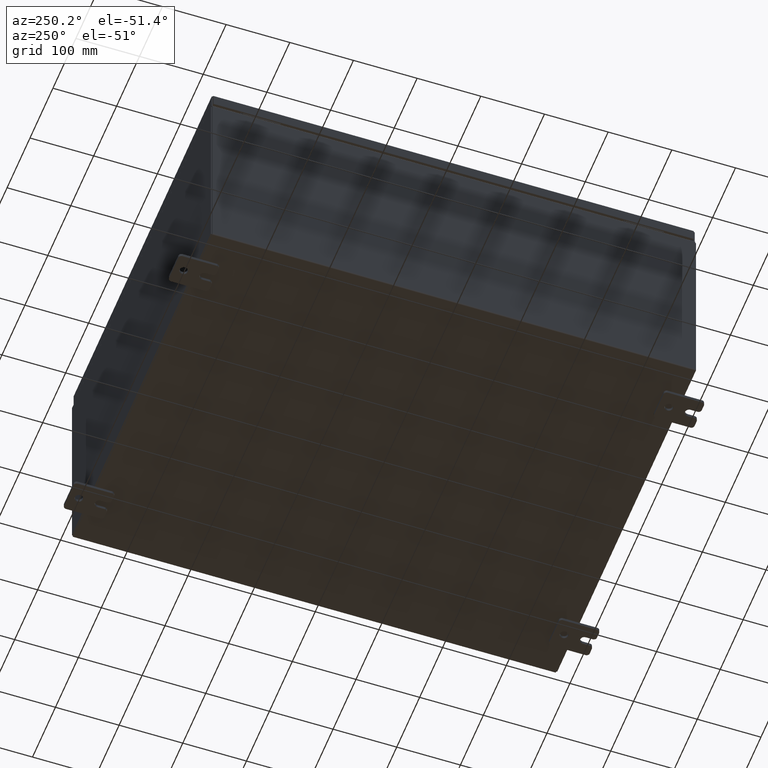
[diagram: clean part render]
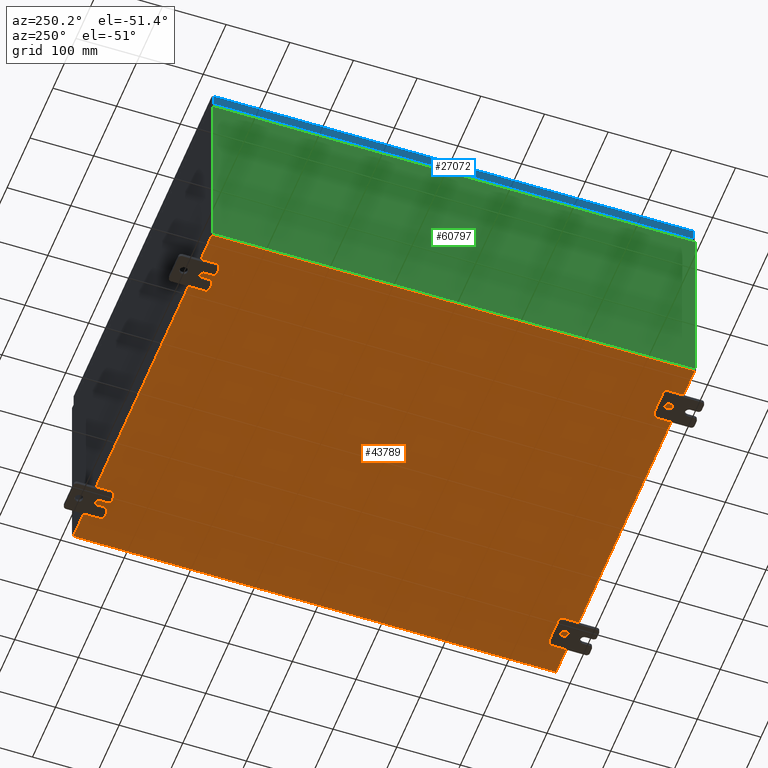
[diagram: same view with three faces highlighted in distinct colors, each labeled with its STEP entity id]
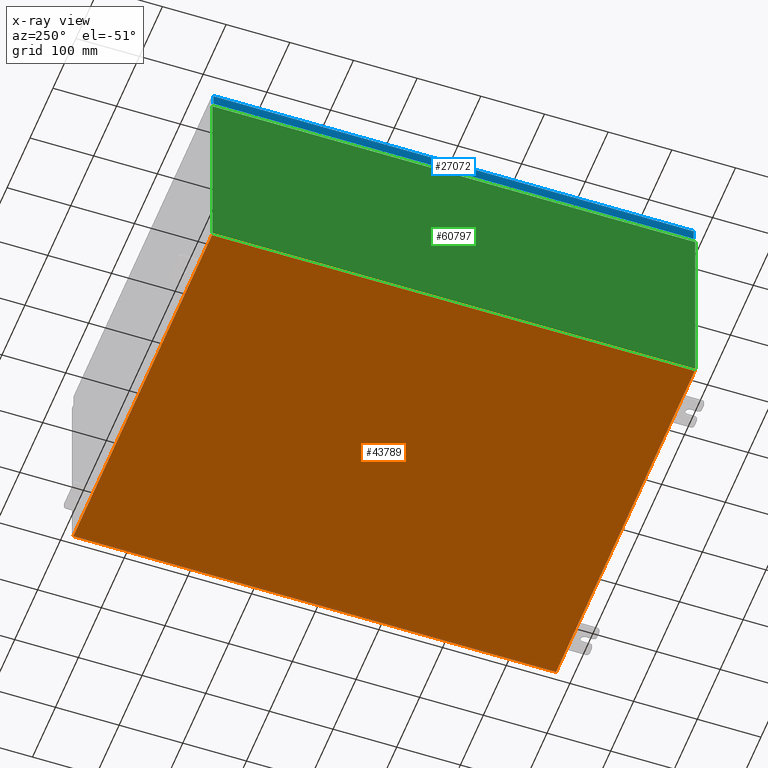
[diagram: x-ray of the same camera — body ghosted, the three highlighted faces saturated]
A machine part, auxiliary view with three faces highlighted in distinct colors.
The next image is the same camera in x-ray (body ghosted, the three faces saturated) — at least one of them is partly hidden behind the body in this view.
Their STEP definitions:

[orange] entity #43789 — the highlighted planar face has unit normal (0, 0, -1).
#459 = DIRECTION ( 'NONE',  ( -1.000000000000000000, 0.0000000000000000000, -0.0000000000000000000 ) ) ;
#5292 = DIRECTION ( 'NONE',  ( 1.000000000000000000, 0.0000000000000000000, 0.0000000000000000000 ) ) ;
#5446 = DIRECTION ( 'NONE',  ( -0.0000000000000000000, 1.000000000000000000, -0.0000000000000000000 ) ) ;
#8272 = FACE_OUTER_BOUND ( 'NONE', #47388, .T. ) ;
#9618 = EDGE_CURVE ( 'NONE', #55133, #23109, #38137, .T. ) ;
#14615 = LINE ( 'NONE', #62322, #24949 ) ;
#16386 = EDGE_CURVE ( 'NONE', #58697, #23109, #14615, .T. ) ;
#16483 = EDGE_CURVE ( 'NONE', #58697, #21466, #44720, .T. ) ;
#19591 = AXIS2_PLACEMENT_3D ( 'NONE', #25257, #30261, #459 ) ;
#21466 = VERTEX_POINT ( 'NONE', #39085 ) ;
#22053 = CARTESIAN_POINT ( 'NONE',  ( -11.91230000000000500, 14.92530000000000000, -0.07470000000000000300 ) ) ;
#22160 = CARTESIAN_POINT ( 'NONE',  ( -11.91230000000000500, -14.92530000000000000, -0.07469999999999994700 ) ) ;
#23109 = VERTEX_POINT ( 'NONE', #22053 ) ;
#24191 = ORIENTED_EDGE ( 'NONE', *, *, #57202, .F. ) ;
#24699 = CARTESIAN_POINT ( 'NONE',  ( -11.91230000000000500, -14.92530000000000000, -0.07469999999999994700 ) ) ;
#24949 = VECTOR ( 'NONE', #32732, 39.37007874015748100 ) ;
#25257 = CARTESIAN_POINT ( 'NONE',  ( 0.0000000000000000000, 0.0000000000000000000, -0.07470000000000000300 ) ) ;
#25371 = VECTOR ( 'NONE', #5292, 39.37007874015748100 ) ;
#30261 = DIRECTION ( 'NONE',  ( 0.0000000000000000000, 0.0000000000000000000, -1.000000000000000000 ) ) ;
#32732 = DIRECTION ( 'NONE',  ( -1.000000000000000000, -0.0000000000000000000, -0.0000000000000000000 ) ) ;
#35062 = CARTESIAN_POINT ( 'NONE',  ( -12.00000000000000500, -14.92530000000000000, -0.07470000000000000300 ) ) ;
#35073 = ORIENTED_EDGE ( 'NONE', *, *, #16483, .T. ) ;
#38137 = LINE ( 'NONE', #22160, #52831 ) ;
#38591 = LINE ( 'NONE', #35062, #25371 ) ;
#39085 = CARTESIAN_POINT ( 'NONE',  ( 11.91229999999998800, -14.92530000000000000, -0.07470000000000000300 ) ) ;
#43789 = ADVANCED_FACE ( 'NONE', ( #8272 ), #54904, .T. ) ;
#44471 = ORIENTED_EDGE ( 'NONE', *, *, #9618, .T. ) ;
#44720 = LINE ( 'NONE', #52623, #50556 ) ;
#47388 = EDGE_LOOP ( 'NONE', ( #24191, #44471, #47917, #35073 ) ) ;
#47821 = DIRECTION ( 'NONE',  ( -0.0000000000000000000, -1.000000000000000000, 8.208677865577646300E-017 ) ) ;
#47917 = ORIENTED_EDGE ( 'NONE', *, *, #16386, .F. ) ;
#50556 = VECTOR ( 'NONE', #47821, 39.37007874015748100 ) ;
#52623 = CARTESIAN_POINT ( 'NONE',  ( 11.91229999999999700, 14.92530000000000000, -0.07470000000000226500 ) ) ;
#52831 = VECTOR ( 'NONE', #5446, 39.37007874015748100 ) ;
#54904 = PLANE ( 'NONE',  #19591 ) ;
#55133 = VERTEX_POINT ( 'NONE', #24699 ) ;
#57202 = EDGE_CURVE ( 'NONE', #55133, #21466, #38591, .T. ) ;
#58587 = CARTESIAN_POINT ( 'NONE',  ( 11.91229999999999700, 14.92530000000000000, -0.07470000000000226500 ) ) ;
#58697 = VERTEX_POINT ( 'NONE', #58587 ) ;
#62322 = CARTESIAN_POINT ( 'NONE',  ( -12.00000000000000500, 14.92530000000000000, -0.07470000000000000300 ) ) ;

[blue] entity #27072 — the highlighted planar face has unit normal (1, 0, -0).
#437 = ORIENTED_EDGE ( 'NONE', *, *, #46802, .F. ) ;
#1228 = VERTEX_POINT ( 'NONE', #26740 ) ;
#2605 = CARTESIAN_POINT ( 'NONE',  ( -11.93750000000000000, -14.93749999999999500, -0.08770000000000004200 ) ) ;
#5507 = CARTESIAN_POINT ( 'NONE',  ( -11.93750000000000000, 14.84865786437627100, 1.401682739873761500E-013 ) ) ;
#7172 = PLANE ( 'NONE',  #47321 ) ;
#7995 = DIRECTION ( 'NONE',  ( 3.745549041839940000E-031, -1.000000000000000000, -1.104117517615176400E-045 ) ) ;
#8099 = VECTOR ( 'NONE', #51624, 39.37007874015748100 ) ;
#10867 = CARTESIAN_POINT ( 'NONE',  ( -11.93750000000000200, 14.84865786437627800, -0.7949999999999960400 ) ) ;
#11918 = VERTEX_POINT ( 'NONE', #38800 ) ;
#17003 = CARTESIAN_POINT ( 'NONE',  ( -11.93750000000000200, -14.93749999999999500, -0.7949999999999997100 ) ) ;
#19690 = DIRECTION ( 'NONE',  ( -3.034122441942816500E-015, 6.982962677686265900E-015, -1.000000000000000000 ) ) ;
#22100 = LINE ( 'NONE', #2605, #33734 ) ;
#24299 = FACE_OUTER_BOUND ( 'NONE', #26834, .T. ) ;
#26740 = CARTESIAN_POINT ( 'NONE',  ( -11.93750000000000000, -14.84865786437626200, -0.08770000000000007000 ) ) ;
#26834 = EDGE_LOOP ( 'NONE', ( #44111, #43973, #437, #57635 ) ) ;
#26882 = DIRECTION ( 'NONE',  ( 1.000000000000000000, 3.745549041839939100E-031, -3.034122441942816500E-015 ) ) ;
#27072 = ADVANCED_FACE ( 'NONE', ( #24299 ), #7172, .F. ) ;
#31899 = CARTESIAN_POINT ( 'NONE',  ( -11.93750000000000000, -4.471249168696428000E-030, 3.648065030670395400E-014 ) ) ;
#33472 = EDGE_CURVE ( 'NONE', #43701, #63871, #62585, .T. ) ;
#33734 = VECTOR ( 'NONE', #7995, 39.37007874015748100 ) ;
#38800 = CARTESIAN_POINT ( 'NONE',  ( -11.93750000000000200, -14.84865786437626100, -0.7949999999999996000 ) ) ;
#41290 = VECTOR ( 'NONE', #19690, 39.37007874015748100 ) ;
#41867 = DIRECTION ( 'NONE',  ( -3.034122441942816500E-015, 0.0000000000000000000, -1.000000000000000000 ) ) ;
#43701 = VERTEX_POINT ( 'NONE', #59420 ) ;
#43973 = ORIENTED_EDGE ( 'NONE', *, *, #33472, .T. ) ;
#44111 = ORIENTED_EDGE ( 'NONE', *, *, #46252, .F. ) ;
#46077 = LINE ( 'NONE', #17003, #8099 ) ;
#46252 = EDGE_CURVE ( 'NONE', #43701, #1228, #22100, .T. ) ;
#46802 = EDGE_CURVE ( 'NONE', #11918, #63871, #46077, .T. ) ;
#47321 = AXIS2_PLACEMENT_3D ( 'NONE', #31899, #26882, #41867 ) ;
#47882 = VECTOR ( 'NONE', #55118, 39.37007874015748100 ) ;
#49939 = EDGE_CURVE ( 'NONE', #1228, #11918, #54387, .T. ) ;
#51624 = DIRECTION ( 'NONE',  ( 4.379057701015054300E-047, 1.000000000000000000, 1.234475243998914400E-016 ) ) ;
#54319 = CARTESIAN_POINT ( 'NONE',  ( -11.93750000000000000, -14.84865786437626400, -0.07469999999999976700 ) ) ;
#54387 = LINE ( 'NONE', #54319, #41290 ) ;
#55118 = DIRECTION ( 'NONE',  ( -3.034122441942816500E-015, 6.982962677686265900E-015, -1.000000000000000000 ) ) ;
#57635 = ORIENTED_EDGE ( 'NONE', *, *, #49939, .F. ) ;
#59420 = CARTESIAN_POINT ( 'NONE',  ( -11.93750000000000000, 14.84865786437627100, -0.08770000000000004200 ) ) ;
#62585 = LINE ( 'NONE', #5507, #47882 ) ;
#63871 = VERTEX_POINT ( 'NONE', #10867 ) ;

[green] entity #60797 — the highlighted planar face has unit normal (1, 0, 0).
#236 = FACE_OUTER_BOUND ( 'NONE', #28320, .T. ) ;
#749 = LINE ( 'NONE', #22954, #60436 ) ;
#2591 = ORIENTED_EDGE ( 'NONE', *, *, #38313, .F. ) ;
#3559 = VECTOR ( 'NONE', #46172, 39.37007874015748100 ) ;
#7515 = CARTESIAN_POINT ( 'NONE',  ( -12.00000000000004600, -14.92530000000000000, 11.83760000000000000 ) ) ;
#8198 = DIRECTION ( 'NONE',  ( 0.0000000000000000000, 1.000000000000000000, 0.0000000000000000000 ) ) ;
#9750 = CARTESIAN_POINT ( 'NONE',  ( -12.00000000000000500, -14.92530000000000000, 0.01299999999999984700 ) ) ;
#10165 = VECTOR ( 'NONE', #36944, 39.37007874015748100 ) ;
#11636 = CARTESIAN_POINT ( 'NONE',  ( -12.00000000000000500, 0.0000000000000000000, -4.204500978058386500E-014 ) ) ;
#16630 = DIRECTION ( 'NONE',  ( 3.482016343714355100E-015, 0.0000000000000000000, -1.000000000000000000 ) ) ;
#16824 = LINE ( 'NONE', #20862, #3559 ) ;
#19152 = VERTEX_POINT ( 'NONE', #7515 ) ;
#20862 = CARTESIAN_POINT ( 'NONE',  ( -12.00000000000000500, 14.92530000000000000, -4.204500978058386500E-014 ) ) ;
#20965 = CARTESIAN_POINT ( 'NONE',  ( -12.00000000000000500, 14.92530000000000000, 0.01299999999999984700 ) ) ;
#22830 = VERTEX_POINT ( 'NONE', #64103 ) ;
#22954 = CARTESIAN_POINT ( 'NONE',  ( -12.00000000000004600, -14.92530000000000000, 11.83760000000000000 ) ) ;
#23370 = LINE ( 'NONE', #42140, #10165 ) ;
#27330 = CARTESIAN_POINT ( 'NONE',  ( -12.00000000000004600, 14.92530000000000000, 11.83760000000000000 ) ) ;
#28320 = EDGE_LOOP ( 'NONE', ( #50425, #48237, #2591, #62011 ) ) ;
#29528 = EDGE_CURVE ( 'NONE', #56444, #19152, #23370, .T. ) ;
#31552 = AXIS2_PLACEMENT_3D ( 'NONE', #11636, #46265, #16630 ) ;
#32614 = VECTOR ( 'NONE', #55576, 39.37007874015748100 ) ;
#35898 = VERTEX_POINT ( 'NONE', #27330 ) ;
#36944 = DIRECTION ( 'NONE',  ( -3.482016343714355500E-015, 0.0000000000000000000, 1.000000000000000000 ) ) ;
#38313 = EDGE_CURVE ( 'NONE', #56444, #22830, #58858, .T. ) ;
#41345 = PLANE ( 'NONE',  #31552 ) ;
#42140 = CARTESIAN_POINT ( 'NONE',  ( -12.00000000000000500, -14.92530000000000000, -4.204500978058386500E-014 ) ) ;
#46172 = DIRECTION ( 'NONE',  ( 3.482016343714355500E-015, 0.0000000000000000000, -1.000000000000000000 ) ) ;
#46265 = DIRECTION ( 'NONE',  ( 1.000000000000000000, 0.0000000000000000000, 3.482016343714355100E-015 ) ) ;
#48237 = ORIENTED_EDGE ( 'NONE', *, *, #57939, .T. ) ;
#50425 = ORIENTED_EDGE ( 'NONE', *, *, #51458, .T. ) ;
#51458 = EDGE_CURVE ( 'NONE', #19152, #35898, #749, .T. ) ;
#55576 = DIRECTION ( 'NONE',  ( -0.0000000000000000000, 1.000000000000000000, -0.0000000000000000000 ) ) ;
#56444 = VERTEX_POINT ( 'NONE', #9750 ) ;
#57939 = EDGE_CURVE ( 'NONE', #35898, #22830, #16824, .T. ) ;
#58858 = LINE ( 'NONE', #20965, #32614 ) ;
#60436 = VECTOR ( 'NONE', #8198, 39.37007874015748100 ) ;
#60797 = ADVANCED_FACE ( 'NONE', ( #236 ), #41345, .F. ) ;
#62011 = ORIENTED_EDGE ( 'NONE', *, *, #29528, .T. ) ;
#64103 = CARTESIAN_POINT ( 'NONE',  ( -12.00000000000000500, 14.92530000000000000, 0.01299999999999984700 ) ) ;